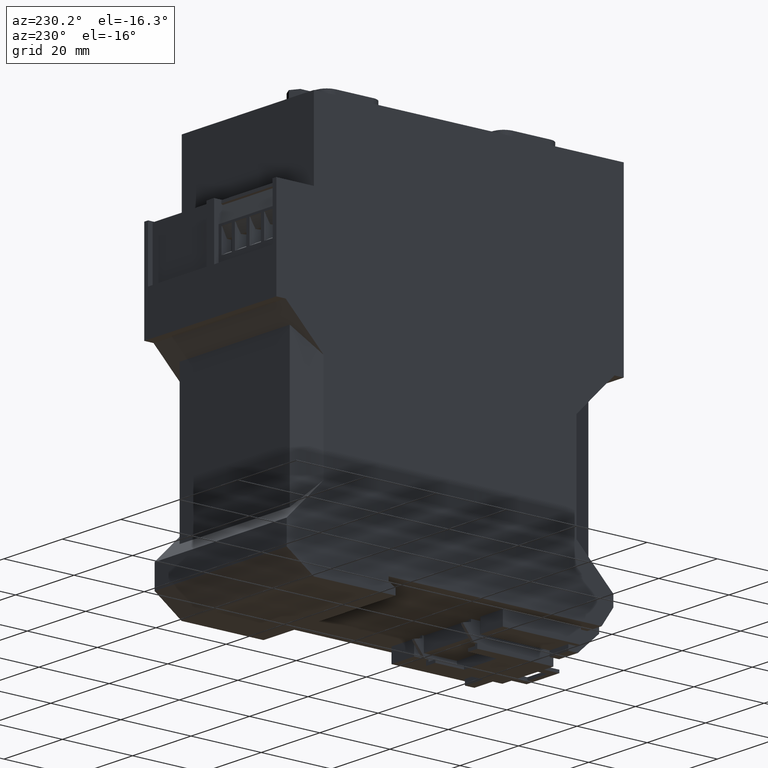
[diagram: clean part render]
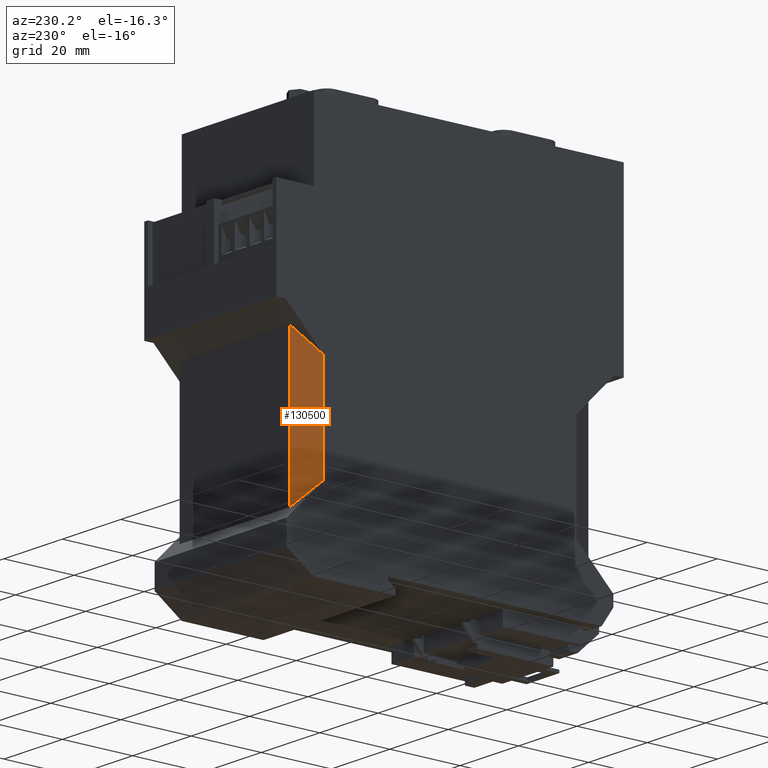
[diagram: same view with one face highlighted and labeled with its STEP entity id]
A machine part, auxiliary view. The second image highlights one B-rep face of the part: STEP entity #130500.
In plain terms, the highlighted planar face has unit normal (0.866, -0.5, 0).
Its self-contained STEP definition (entity closure, byte-faithful):
#680=CARTESIAN_POINT('',(18.55000000009,18.4999999999987,-11.3));
#690=VERTEX_POINT('',#680);
#720=CARTESIAN_POINT('',(18.5500000000901,24.,-11.3));
#730=DIRECTION('',(4.E-15,1.,0.));
#740=VECTOR('',#730,1.);
#750=LINE('',#720,#740);
#760=CARTESIAN_POINT('',(18.5500000000902,47.1000000000011,-11.3));
#770=VERTEX_POINT('',#760);
#780=EDGE_CURVE('',#690,#770,#750,.T.);
#126820=CARTESIAN_POINT('',(24.,52.5499999999109,-8.15344103296862));
#126830=DIRECTION('',(0.65465367070798,0.654653670707975,
0.377964473009226));
#126840=VECTOR('',#126830,1.);
#126850=LINE('',#126820,#126840);
#126860=CARTESIAN_POINT('',(25.0500000000871,53.599999999998,
-7.54722325026923));
#126870=VERTEX_POINT('',#126860);
#126880=EDGE_CURVE('',#770,#126870,#126850,.T.);
#127520=CARTESIAN_POINT('',(24.,13.0500000000897,-8.15344103296852));
#127530=DIRECTION('',(-0.654653670708029,0.654653670707908,
-0.377964473009258));
#127540=VECTOR('',#127530,1.);
#127550=LINE('',#127520,#127540);
#127560=CARTESIAN_POINT('',(25.0500000000874,12.0000000000026,
-7.54722325026897));
#127570=VERTEX_POINT('',#127560);
#127580=EDGE_CURVE('',#127570,#690,#127550,.T.);
#130340=CARTESIAN_POINT('',(20.840414750099,17.5174029733583,
-9.97762842752644));
#130350=DIRECTION('',(-0.499999999999999,2.E-15,0.866025403784439));
#130360=DIRECTION('',(0.866025403784439,0.,0.499999999999999));
#130370=AXIS2_PLACEMENT_3D('',#130340,#130350,#130360);
#130380=PLANE('',#130370);
#130390=ORIENTED_EDGE('',*,*,#127580,.T.);
#130400=CARTESIAN_POINT('',(25.0500000000873,24.,-7.54722325026905));
#130410=DIRECTION('',(-6.60000000000277E-15,1.,-6.11991285341162E-15));
#130420=VECTOR('',#130410,1.);
#130430=LINE('',#130400,#130420);
#130440=EDGE_CURVE('',#127570,#126870,#130430,.T.);
#130450=ORIENTED_EDGE('',*,*,#130440,.F.);
#130460=ORIENTED_EDGE('',*,*,#126880,.T.);
#130470=ORIENTED_EDGE('',*,*,#780,.T.);
#130480=EDGE_LOOP('',(#130470,#130460,#130450,#130390));
#130490=FACE_OUTER_BOUND('',#130480,.T.);
#130500=ADVANCED_FACE('',(#130490),#130380,.F.);